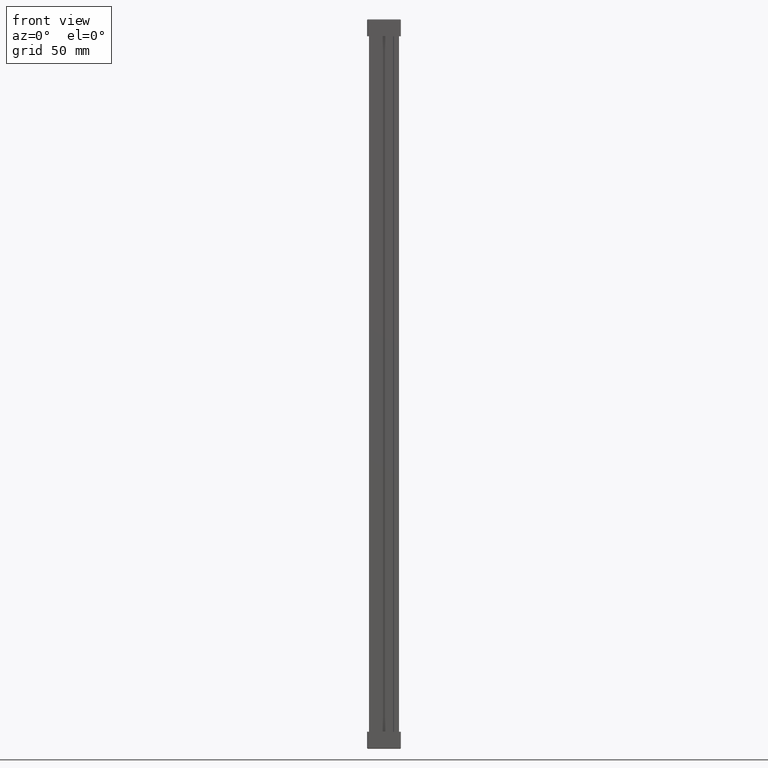
[diagram: clean part render]
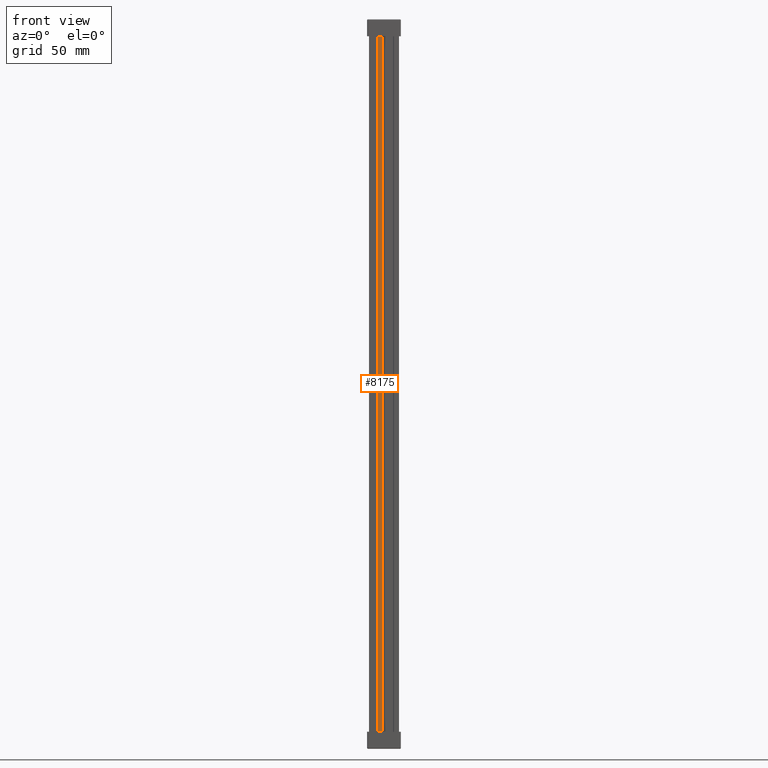
[diagram: same view with one face highlighted and labeled with its STEP entity id]
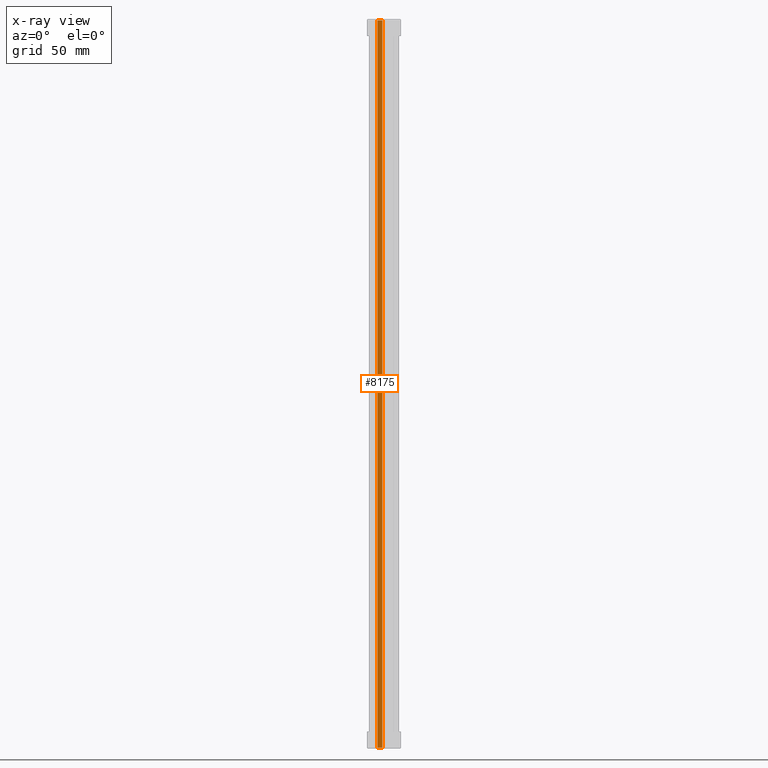
[diagram: x-ray of the same camera — body ghosted, the highlighted face saturated]
A machine part, front view. The second image highlights one B-rep face of the part: STEP entity #8175.
The next image is the same camera in x-ray: the body ghosted, the highlighted face saturated — about 0% of this face is hidden behind the body in this view.
In plain terms, the highlighted planar face has unit normal (0, 1, 0).
Its self-contained STEP definition (entity closure, byte-faithful):
#1696 = CARTESIAN_POINT ( 'NONE',  ( 11.74999999999998400, 0.0000000000000000000, 304.0000000000000000 ) ) ;
#1697 = DIRECTION ( 'NONE',  ( 0.0000000000000000000, -0.0000000000000000000, 1.000000000000000000 ) ) ;
#1700 = DIRECTION ( 'NONE',  ( 0.0000000000000000000, 1.000000000000000000, 0.0000000000000000000 ) ) ;
#1719 = PLANE ( 'NONE',  #59559 ) ;
#1728 = FACE_OUTER_BOUND ( 'NONE', #5917, .T. ) ;
#2511 = ORIENTED_EDGE ( 'NONE', *, *, #9431, .F. ) ;
#2557 = ORIENTED_EDGE ( 'NONE', *, *, #9403, .F. ) ;
#4369 = VECTOR ( 'NONE', #46608, 1000.000000000000000 ) ;
#4402 = VECTOR ( 'NONE', #46674, 1000.000000000000000 ) ;
#4434 = VECTOR ( 'NONE', #46721, 1000.000000000000000 ) ;
#4453 = VECTOR ( 'NONE', #46762, 1000.000000000000000 ) ;
#5917 = EDGE_LOOP ( 'NONE', ( #2557, #37288, #2511, #37280 ) ) ;
#8175 = ADVANCED_FACE ( 'NONE', ( #1728 ), #1719, .F. ) ;
#9403 = EDGE_CURVE ( 'NONE', #12283, #12360, #46626, .T. ) ;
#9419 = EDGE_CURVE ( 'NONE', #12237, #12360, #46645, .T. ) ;
#9431 = EDGE_CURVE ( 'NONE', #12237, #12332, #46690, .T. ) ;
#9438 = EDGE_CURVE ( 'NONE', #12332, #12283, #46782, .T. ) ;
#12237 = VERTEX_POINT ( 'NONE', #42126 ) ;
#12283 = VERTEX_POINT ( 'NONE', #42175 ) ;
#12332 = VERTEX_POINT ( 'NONE', #42237 ) ;
#12360 = VERTEX_POINT ( 'NONE', #42243 ) ;
#37280 = ORIENTED_EDGE ( 'NONE', *, *, #9419, .T. ) ;
#37288 = ORIENTED_EDGE ( 'NONE', *, *, #9438, .F. ) ;
#42126 = CARTESIAN_POINT ( 'NONE',  ( 10.50000000000006400, 0.0000000000000000000, -263.9999999999977800 ) ) ;
#42175 = CARTESIAN_POINT ( 'NONE',  ( 6.500000000000061300, 0.0000000000000000000, 303.9999999999985800 ) ) ;
#42237 = CARTESIAN_POINT ( 'NONE',  ( 6.500000000000061300, 0.0000000000000000000, -263.9999999999986400 ) ) ;
#42243 = CARTESIAN_POINT ( 'NONE',  ( 10.50000000000006400, 0.0000000000000000000, 303.9999999999966500 ) ) ;
#46608 = DIRECTION ( 'NONE',  ( 1.000000000000000000, -0.0000000000000000000, -3.163580508669383600E-013 ) ) ;
#46626 = LINE ( 'NONE', #46630, #4369 ) ;
#46630 = CARTESIAN_POINT ( 'NONE',  ( 11.75000000020468400, 0.0000000000000000000, 303.9999999999962500 ) ) ;
#46645 = LINE ( 'NONE', #46647, #4402 ) ;
#46647 = CARTESIAN_POINT ( 'NONE',  ( 10.50000000000006400, 0.0000000000000000000, 304.0000000000000000 ) ) ;
#46674 = DIRECTION ( 'NONE',  ( 0.0000000000000000000, 0.0000000000000000000, 1.000000000000000000 ) ) ;
#46690 = LINE ( 'NONE', #46703, #4434 ) ;
#46703 = CARTESIAN_POINT ( 'NONE',  ( 11.75000000020468400, 0.0000000000000000000, -263.9999999999962500 ) ) ;
#46721 = DIRECTION ( 'NONE',  ( -1.000000000000000000, -0.0000000000000000000, -3.163580508669383600E-013 ) ) ;
#46742 = CARTESIAN_POINT ( 'NONE',  ( 6.500000000000061300, 0.0000000000000000000, 304.0000000000000000 ) ) ;
#46762 = DIRECTION ( 'NONE',  ( 0.0000000000000000000, 0.0000000000000000000, 1.000000000000000000 ) ) ;
#46782 = LINE ( 'NONE', #46742, #4453 ) ;
#59559 = AXIS2_PLACEMENT_3D ( 'NONE', #1696, #1700, #1697 ) ;